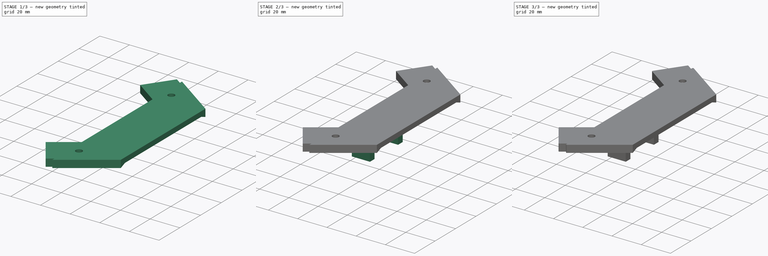
[diagram: build sequence overview — one tinted view per stage of 3, left to right]
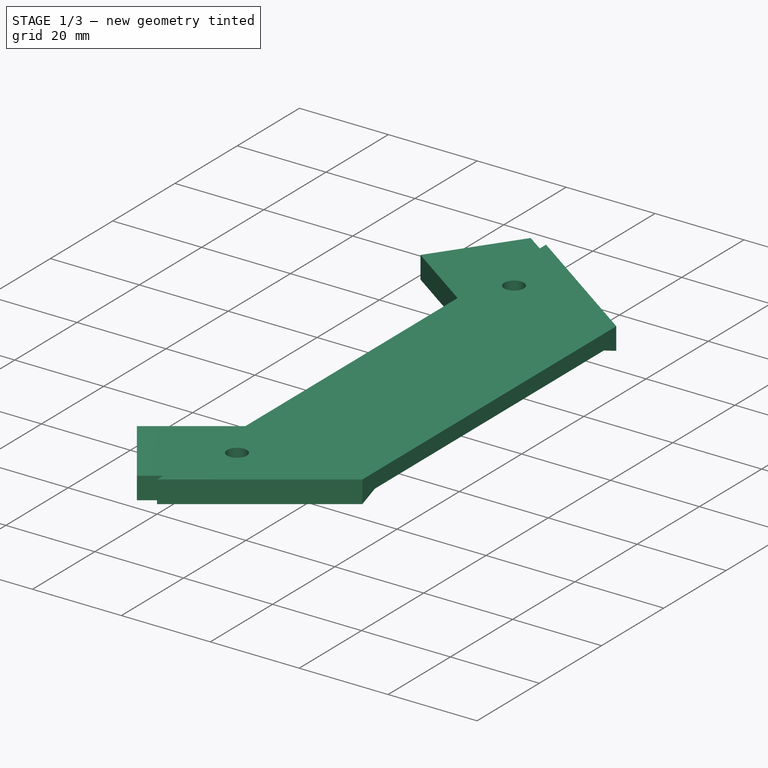
[diagram: stage 1 of 3 — iso view after this stage's code; geometry added in this stage tinted green]
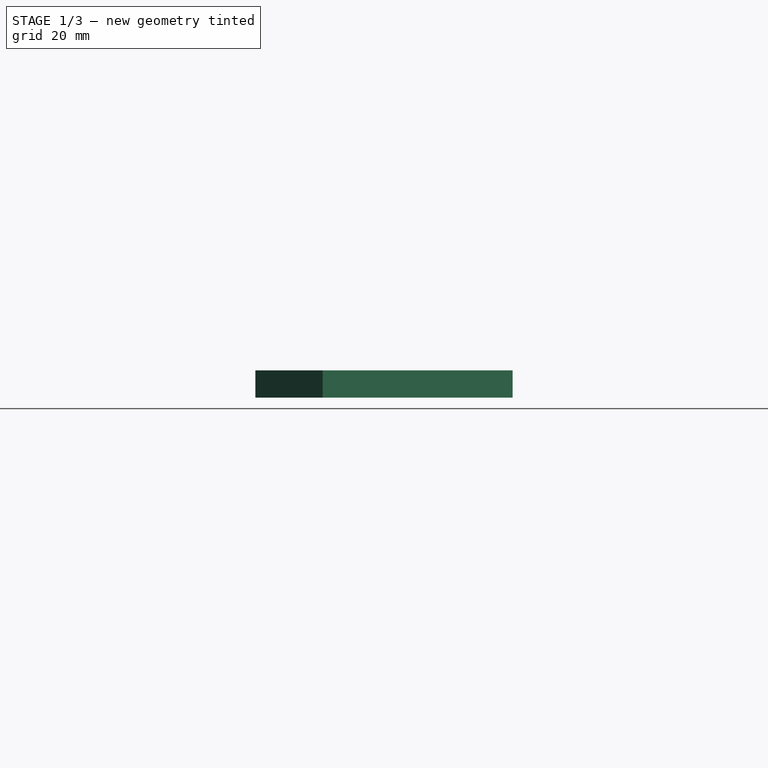
[diagram: stage 1 of 3 — front view after this stage's code; geometry added in this stage tinted green]
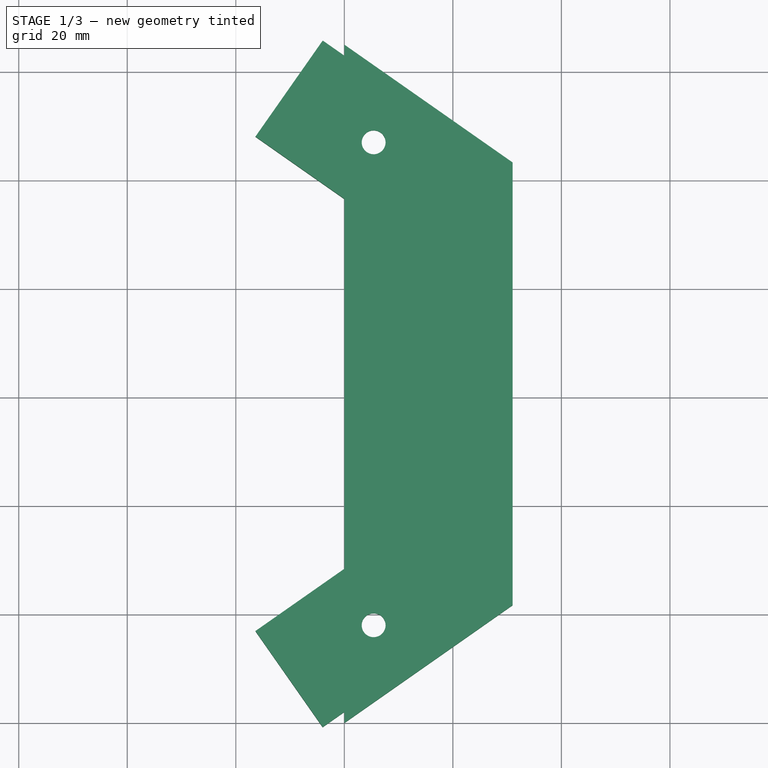
[diagram: stage 1 of 3 — top view after this stage's code; geometry added in this stage tinted green]
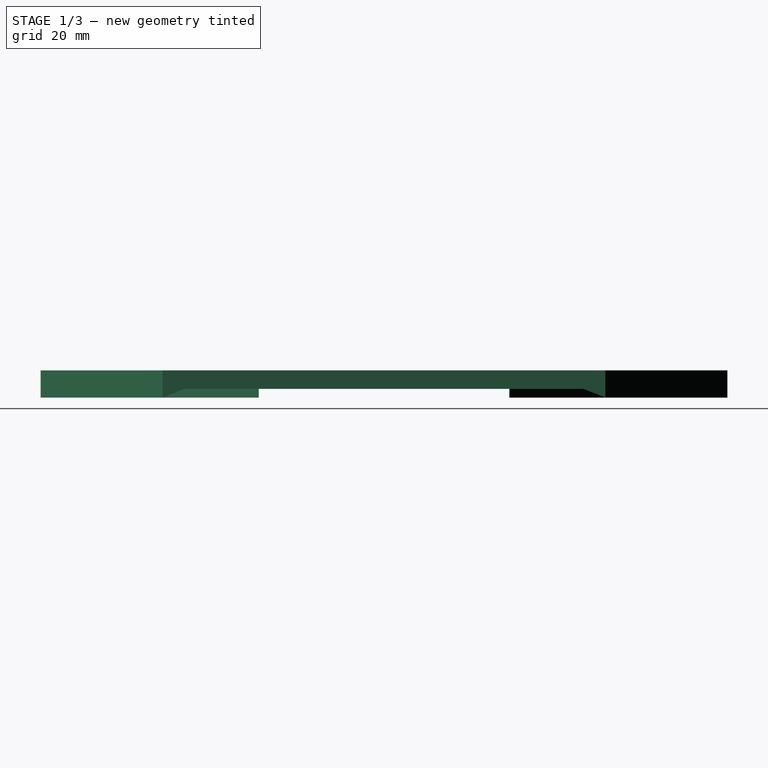
[diagram: stage 1 of 3 — right view after this stage's code; geometry added in this stage tinted green]
FCSTD DOCUMENT  (FreeCAD 1.0R39319 (Git))
Label: front sensor array
License: All rights reserved
LicenseURL: https://en.wikipedia.org/wiki/All_rights_reserved
objects: Sketcher::SketchObject×7, PartDesign::Pocket×5, PartDesign::Pad×2, PartDesign::Fillet×1, PartDesign::Body×1
note: 39 computed .brp shape members not serialized (recipe doc carries the construction recipe); baked Part::Feature solids carry a one-line shape summary decoded from their .brp

FEATURE [Sketcher::SketchObject] Sketch  label="base"
  ArcFitTolerance = 1e-06
  AttachmentSupport = -> [XY_Plane]
  FullyConstrained = true
  MakeInternals = false
  MapMode = 5
  sketch-geometry (12):
    g0: LineSegment StartX=0 StartY=0 StartZ=0 EndX=0 EndY=2.03 EndZ=0
    g1: LineSegment StartX=0 StartY=2.03 StartZ=0 EndX=-3.99319 EndY=-0.766064 EndZ=0
    g2: LineSegment StartX=-3.99319 StartY=-0.766064 StartZ=0 EndX=-16.383 EndY=16.9285 EndZ=0
    g3: LineSegment StartX=-16.383 StartY=16.9285 StartZ=0 EndX=0 EndY=28.4 EndZ=0
    g4: LineSegment StartX=0 StartY=28.4 StartZ=0 EndX=0 EndY=96.58 EndZ=0
    g5: LineSegment StartX=0 StartY=96.58 StartZ=0 EndX=-16.383 EndY=108.052 EndZ=0
    g6: LineSegment StartX=-16.383 StartY=108.052 StartZ=0 EndX=-3.9838 EndY=125.759 EndZ=0
    g7: LineSegment StartX=-3.9838 StartY=125.759 StartZ=0 EndX=4e-16 EndY=122.97 EndZ=0
    g8: LineSegment StartX=4e-16 StartY=122.97 StartZ=0 EndX=0 EndY=125 EndZ=0
    g9: LineSegment StartX=0 StartY=125 StartZ=0 EndX=31 EndY=103.294 EndZ=0
    g10: LineSegment StartX=31 StartY=103.294 StartZ=0 EndX=31 EndY=21.7064 EndZ=0
    g11: LineSegment StartX=31 StartY=21.7064 StartZ=0 EndX=0 EndY=0 EndZ=0
  constraints (35):
    c: Coincident(g-1,g0)
    c: PointOnObject(g0,g-2)
    c: Coincident(g0,g1)
    c: Coincident(g1,g2)
    c: Coincident(g2,g3)
    c: PointOnObject(g3,g-2)
    c: Coincident(g3,g4)
    c: PointOnObject(g4,g-2)
    c: Coincident(g4,g5)
    c: Coincident(g5,g6)
    c: Coincident(g6,g7)
    c: PointOnObject(g7,g-2)
    c: Coincident(g7,g8)
    c: PointOnObject(g8,g-2)
    c: Coincident(g8,g9)
    c: Coincident(g9,g10)
    c: Vertical(g10)
    c: Coincident(g10,g11)
    c: Coincident(g11,g0)
    c: Angle(g8,g9) = 0.959931
    c: Angle(g11,g0) = 0.959931
    c: Distance(g10,g4) = 31
    c: DistanceY(g0,g8) = 125
    c: Distance(g8,g8) = 2.03
    c: Equal(g8,g0)
    c: DistanceY(g4,g4) = 68.18
    c: Distance(g7,g4) = 26.39
    c: Angle(g5,g6) = 1.5708
    c: Angle(g2,g3) = 1.5708
    c: Angle(g6,g7) = 1.5708
    c: Angle(g1,g2) = 1.5708
    c: Angle(g8,g7) = 0.959931
    c: Angle(g1,g0) = 0.959931
    c: Distance(g5,g5) = 20
    c: Equal(g3,g5)
FEATURE [PartDesign::Pad] Pad  label="Pad-base"
  Direction = (0,0,1)
  Length = 5
  Length2 = 10
  Profile = -> Sketch
  ReferenceAxis = -> Sketch [N_Axis]
  Refine = true
  Suppressed = false
  Type = 0
FEATURE [Sketcher::SketchObject] Sketch001  label="holes"
  ArcFitTolerance = 1e-06
  AttachmentSupport = -> [Pad]
  ExternalGeometry = -> [Pad]
  FullyConstrained = true
  MakeInternals = false
  MapMode = 5
  Placement = pos=(0,0,5) rot=(0,0,1;0rad)
  sketch-geometry (6):
    g0: LineSegment [constr] StartX=0 StartY=125 StartZ=0 EndX=0 EndY=0 EndZ=0
    g1: LineSegment [constr] StartX=0 StartY=0 StartZ=0 EndX=3.2 EndY=0 EndZ=0
    g2: LineSegment [constr] StartX=3.2 StartY=0 StartZ=0 EndX=3.2 EndY=125 EndZ=0
    g3: LineSegment [constr] StartX=3.2 StartY=125 StartZ=0 EndX=0 EndY=125 EndZ=0
    g4: Circle CenterX=5.4 CenterY=107 CenterZ=0 NormalX=0 NormalY=0 NormalZ=1 AngleXU=0 Radius=2.2
    g5: Circle CenterX=5.4 CenterY=18 CenterZ=0 NormalX=0 NormalY=0 NormalZ=1 AngleXU=0 Radius=2.2
  constraints (17):
    c: Coincident(g0,g1)
    c: Coincident(g1,g2)
    c: Coincident(g2,g3)
    c: Coincident(g3,g0)
    c: Vertical(g0)
    c: Vertical(g2)
    c: Horizontal(g1)
    c: Horizontal(g3)
    c: Coincident(g0,g-3)
    c: PointOnObject(g1,g-1)
    c: Distance(g3,g3) = 3.2
    c: Diameter(g4) = 4.4
    c: Equal(g4,g5)
    c: DistanceY(g5,g4) = 89
    c: Distance(g5,g-1) = 18
    c: Tangent(g4,g2)
    c: Tangent(g5,g2)
FEATURE [PartDesign::Pocket] Pocket  label="Pocket-holes"
  BaseFeature = -> Pad
  Direction = (0,0,-1)
  Length = 0
  Length2 = 5
  Profile = -> Sketch001
  ReferenceAxis = -> Sketch001 [N_Axis]
  Refine = true
  Suppressed = false
  Type = 1
FEATURE [Sketcher::SketchObject] Sketch002  label="ir-sensor-outer"
  ArcFitTolerance = 1e-06
  AttachmentSupport = -> [Pocket]
  ExternalGeometry = -> [Pocket]
  FullyConstrained = true
  MakeInternals = false
  MapMode = 5
  Placement = pos=(0,0,0) rot=(1,0,0;3.14159rad)
  sketch-geometry (8):
    g0: LineSegment StartX=-12.164 StartY=-15.8951 StartZ=0 EndX=-2.58523 EndY=-2.21521 EndZ=0
    g1: LineSegment StartX=-2.58523 StartY=-2.21521 StartZ=0 EndX=31 EndY=-25.7318 EndZ=0
    g2: LineSegment StartX=31 StartY=-25.7318 StartZ=0 EndX=21.4213 EndY=-39.4117 EndZ=0
    g3: LineSegment StartX=21.4213 StartY=-39.4117 StartZ=0 EndX=-12.164 EndY=-15.8951 EndZ=0
    g4: LineSegment StartX=-2.58523 StartY=-122.785 StartZ=0 EndX=-12.164 EndY=-109.105 EndZ=0
    g5: LineSegment StartX=-12.164 StartY=-109.105 StartZ=0 EndX=21.4213 EndY=-85.5883 EndZ=0
    g6: LineSegment StartX=21.4213 StartY=-85.5883 StartZ=0 EndX=31 EndY=-99.2682 EndZ=0
    g7: LineSegment StartX=31 StartY=-99.2682 StartZ=0 EndX=-2.58523 EndY=-122.785 EndZ=0
  constraints (24):
    c: Coincident(g0,g1)
    c: Coincident(g1,g2)
    c: Coincident(g2,g3)
    c: Coincident(g3,g0)
    c: Parallel(g3,g-4)
    c: Parallel(g0,g-3)
    c: Angle(g2,g3) = 1.5708
    c: Angle(g0,g1) = 1.5708
    c: PointOnObject(g1,g-11)
    c: Distance(g-5,g3) = 8.35
    c: Distance(g-5,g1) = 8.35
    c: Distance(g3,g3) = 41
    c: Coincident(g4,g5)
    c: Coincident(g5,g6)
    c: PointOnObject(g6,g-11)
    c: Coincident(g6,g7)
    c: Coincident(g7,g4)
    c: Angle(g7,g4) = 1.5708
    c: Angle(g5,g6) = 1.5708
    c: Distance(g5,g5) = 41
    c: Distance(g-9,g5) = 8.35
    c: Parallel(g5,g-6)
    c: Parallel(g7,g-8)
    c: Distance(g-9,g7) = 8.35
FEATURE [PartDesign::Pocket] Pocket001  label="Pocket-ir-sensor-outer"
  BaseFeature = -> Pocket
  Direction = (0,0,1)
  Length = 1.6
  Length2 = 5
  Profile = -> Sketch002
  ReferenceAxis = -> Sketch002 [N_Axis]
  Refine = true
  Suppressed = false
  Type = 0
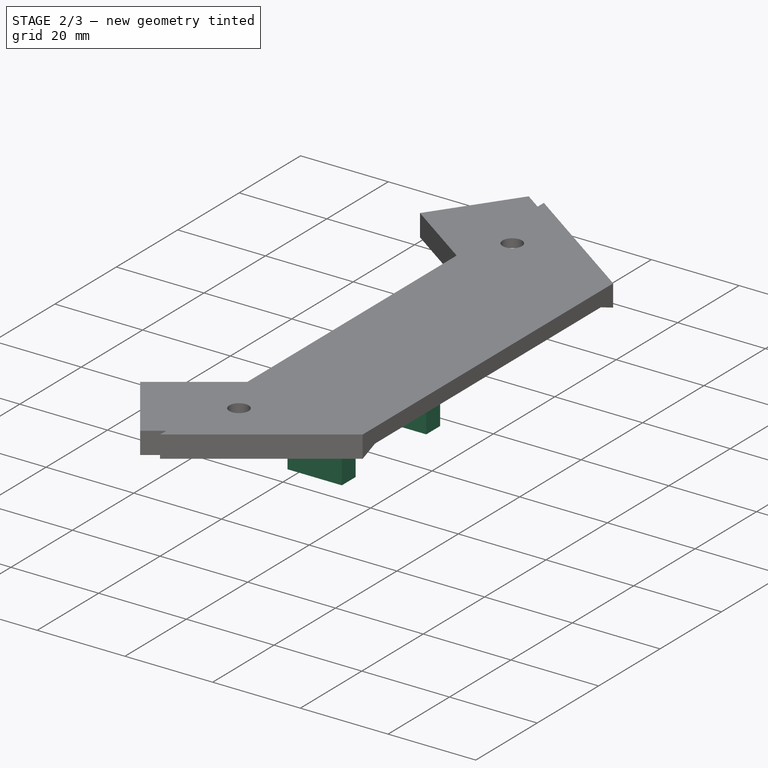
[diagram: stage 2 of 3 — iso view after this stage's code; geometry added in this stage tinted green]
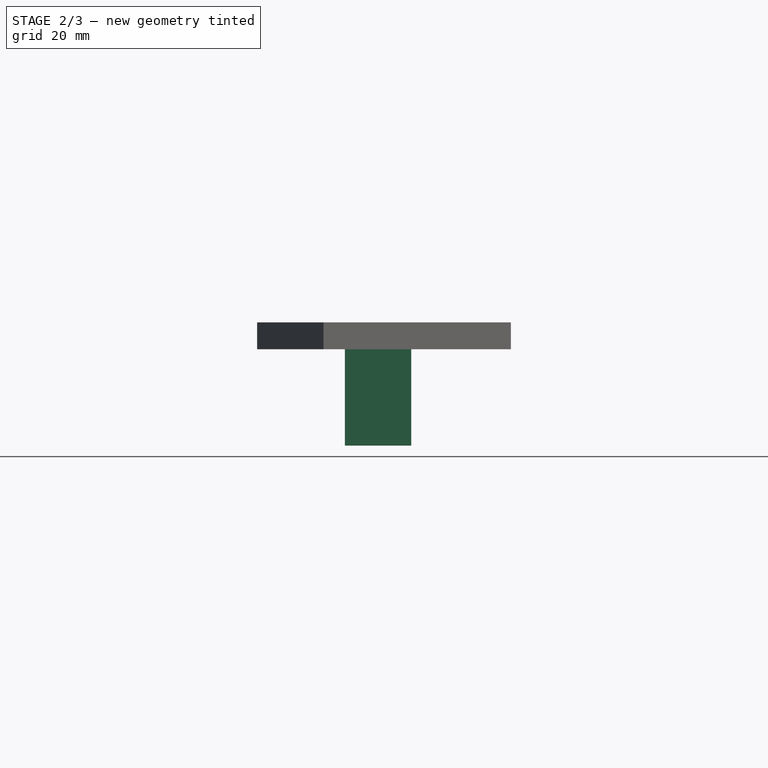
[diagram: stage 2 of 3 — front view after this stage's code; geometry added in this stage tinted green]
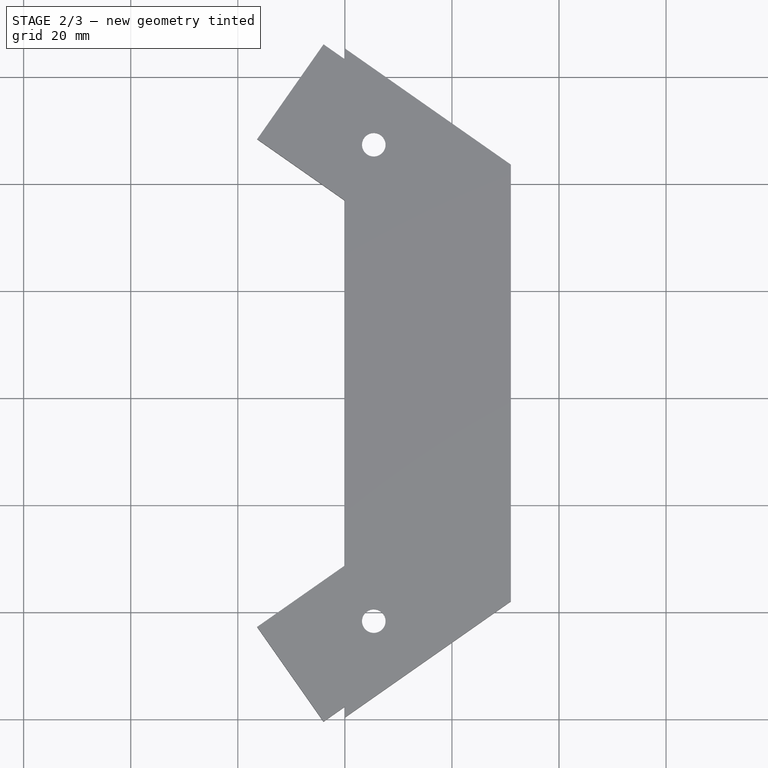
[diagram: stage 2 of 3 — top view after this stage's code; geometry added in this stage tinted green]
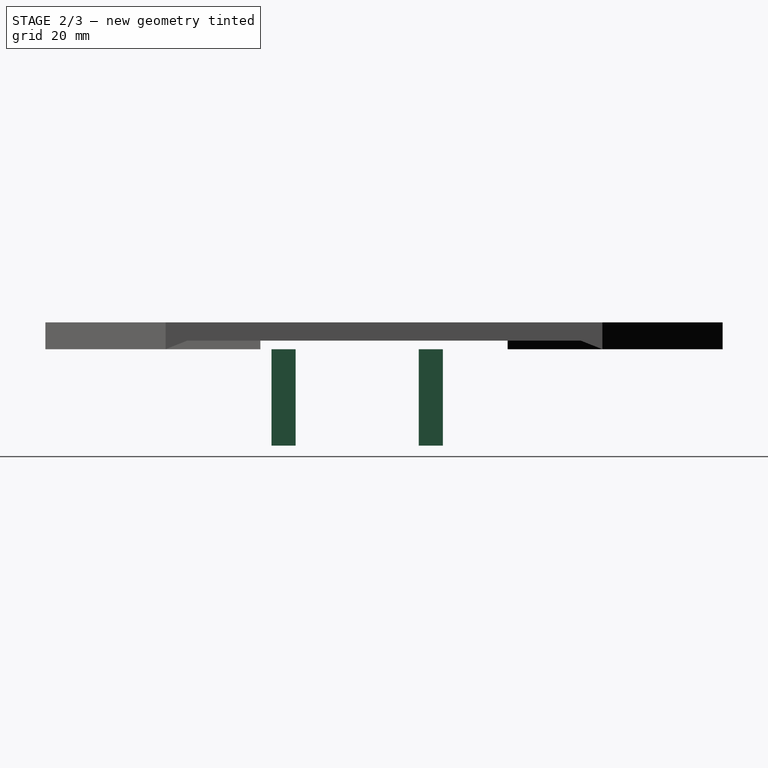
[diagram: stage 2 of 3 — right view after this stage's code; geometry added in this stage tinted green]
FEATURE [Sketcher::SketchObject] Sketch003  label="ir-sensor-inner"
  ArcFitTolerance = 1e-06
  AttachmentSupport = -> [Pocket001]
  ExternalGeometry = -> [Pocket001]
  FullyConstrained = true
  MakeInternals = false
  MapMode = 5
  Placement = pos=(0,0,1.6) rot=(1,0,0;3.14159rad)
  sketch-geometry (8):
    g0: LineSegment StartX=-2.33966 StartY=-121.392 StartZ=0 EndX=-10.7712 EndY=-109.351 EndZ=0
    g1: LineSegment StartX=-10.7712 StartY=-109.351 StartZ=0 EndX=21.1757 EndY=-86.981 EndZ=0
    g2: LineSegment StartX=21.1757 StartY=-86.981 StartZ=0 EndX=29.6073 EndY=-99.0226 EndZ=0
    g3: LineSegment StartX=29.6073 StartY=-99.0226 StartZ=0 EndX=-2.33966 EndY=-121.392 EndZ=0
    g4: LineSegment StartX=-10.7712 StartY=-15.6495 StartZ=0 EndX=21.1757 EndY=-38.019 EndZ=0
    g5: LineSegment StartX=21.1757 StartY=-38.019 StartZ=0 EndX=29.6073 EndY=-25.9774 EndZ=0
    g6: LineSegment StartX=29.6073 StartY=-25.9774 StartZ=0 EndX=-2.33966 EndY=-3.60794 EndZ=0
    g7: LineSegment StartX=-2.33966 StartY=-3.60794 StartZ=0 EndX=-10.7712 EndY=-15.6495 EndZ=0
  constraints (24):
    c: Coincident(g0,g1)
    c: Coincident(g1,g2)
    c: Coincident(g2,g3)
    c: Coincident(g3,g0)
    c: Coincident(g4,g5)
    c: Coincident(g5,g6)
    c: Coincident(g6,g7)
    c: Coincident(g7,g4)
    c: Angle(g0,g1) = 1.5708
    c: Angle(g3,g0) = 1.5708
    c: Angle(g2,g3) = 1.5708
    c: Parallel(g3,g-6)
    c: Distance(g-6,g3) = 1
    c: Distance(g-5,g1) = 1
    c: Distance(g1,g-7) = 1
    c: Distance(g0,g-8) = 1
    c: Parallel(g4,g-4)
    c: Parallel(g5,g-10)
    c: Parallel(g6,g-3)
    c: Parallel(g7,g-9)
    c: Distance(g-9,g7) = 1
    c: Distance(g-4,g4) = 1
    c: Distance(g-10,g5) = 1
    c: Distance(g-3,g6) = 1
FEATURE [PartDesign::Pocket] Pocket002  label="Pocket-ir-sensor-inner"
  BaseFeature = -> Pocket001
  Direction = (0,0,1)
  Length = 1.4
  Length2 = 5
  Profile = -> Sketch003
  ReferenceAxis = -> Sketch003 [N_Axis]
  Refine = true
  Suppressed = false
  Type = 0
FEATURE [Sketcher::SketchObject] Sketch004  label="servo mount-base"
  ArcFitTolerance = 1e-06
  AttachmentSupport = -> [Pocket002]
  ExternalGeometry = -> [Sketch]
  FullyConstrained = true
  MakeInternals = false
  MapMode = 5
  Placement = pos=(0,0,0) rot=(1,0,0;3.14159rad)
  sketch-geometry (12):
    g0: LineSegment StartX=0 StartY=-41.49 StartZ=0 EndX=0 EndY=-45.99 EndZ=0
    g1: LineSegment StartX=0 StartY=-45.99 StartZ=0 EndX=12.4 EndY=-45.99 EndZ=0
    g2: LineSegment StartX=12.4 StartY=-45.99 StartZ=0 EndX=12.4 EndY=-41.49 EndZ=0
    g3: LineSegment StartX=12.4 StartY=-41.49 StartZ=0 EndX=0 EndY=-41.49 EndZ=0
    g4: LineSegment StartX=0 StartY=-68.99 StartZ=0 EndX=0 EndY=-73.49 EndZ=0
    g5: LineSegment StartX=0 StartY=-73.49 StartZ=0 EndX=12.4 EndY=-73.49 EndZ=0
    g6: LineSegment StartX=12.4 StartY=-73.49 StartZ=0 EndX=12.4 EndY=-68.99 EndZ=0
    g7: LineSegment StartX=12.4 StartY=-68.99 StartZ=0 EndX=0 EndY=-68.99 EndZ=0
    g8: LineSegment [constr] StartX=12.4 StartY=-68.99 StartZ=0 EndX=12.4 EndY=-62.49 EndZ=0
    g9: LineSegment [constr] StartX=12.4 StartY=-62.49 StartZ=0 EndX=0 EndY=-62.49 EndZ=0
    g10: LineSegment [constr] StartX=0 StartY=-62.49 StartZ=0 EndX=0 EndY=-68.99 EndZ=0
    g11: LineSegment [constr] StartX=0 StartY=-68.99 StartZ=0 EndX=12.4 EndY=-68.99 EndZ=0
  constraints (35):
    c: Coincident(g0,g1)
    c: Coincident(g1,g2)
    c: Coincident(g2,g3)
    c: Coincident(g3,g0)
    c: Vertical(g0)
    c: Vertical(g2)
    c: Horizontal(g1)
    c: Horizontal(g3)
    c: PointOnObject(g0,g-3)
    c: Coincident(g4,g5)
    c: Coincident(g5,g6)
    c: Coincident(g6,g7)
    c: Coincident(g7,g4)
    c: Vertical(g4)
    c: Vertical(g6)
    c: Horizontal(g5)
    c: Horizontal(g7)
    c: PointOnObject(g4,g-3)
    c: Distance(g2,g2) = 4.5
    c: DistanceX(g3,g3) = 12.4
    c: Equal(g2,g6)
    c: Equal(g3,g7)
    c: Distance(g7,g1) = 23
    c: Coincident(g8,g9)
    c: Coincident(g9,g10)
    c: Coincident(g10,g11)
    c: Coincident(g11,g8)
    c: Vertical(g8)
    c: Vertical(g10)
    c: Horizontal(g9)
    c: Horizontal(g11)
    c: Coincident(g8,g6)
    c: PointOnObject(g9,g-3)
    c: DistanceY(g8,g8) = 6.5
    c: DistanceY(g9,g-3) = 34.09
FEATURE [PartDesign::Pad] Pad001  label="Pad-servo-mount-base"
  BaseFeature = -> Pocket002
  Direction = (0,0,-1)
  Length = 18
  Length2 = 10
  Profile = -> Sketch004
  ReferenceAxis = -> Sketch004 [N_Axis]
  Refine = true
  Suppressed = false
  Type = 0
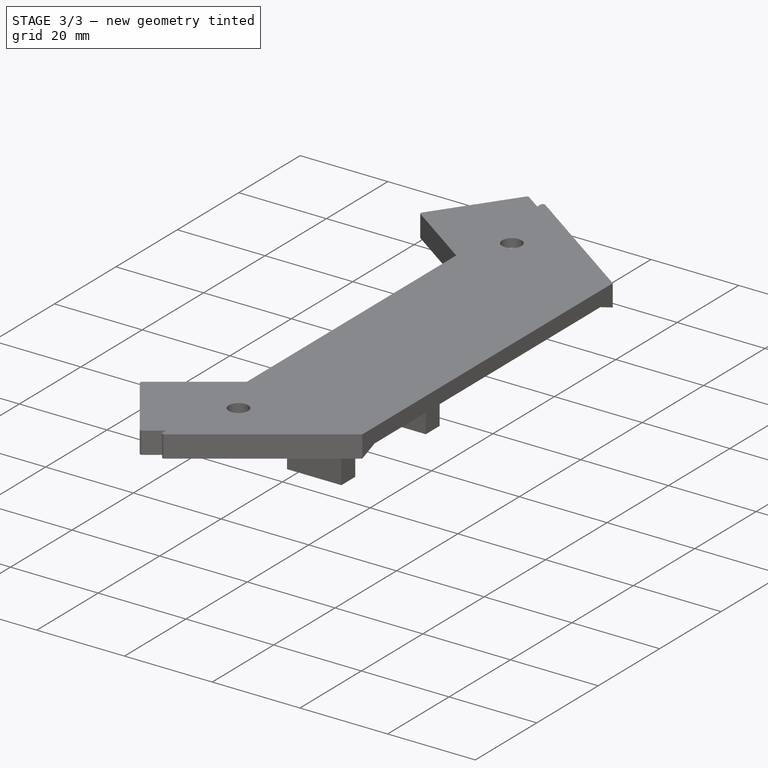
[diagram: stage 3 of 3 — iso view after this stage's code; geometry added in this stage tinted green]
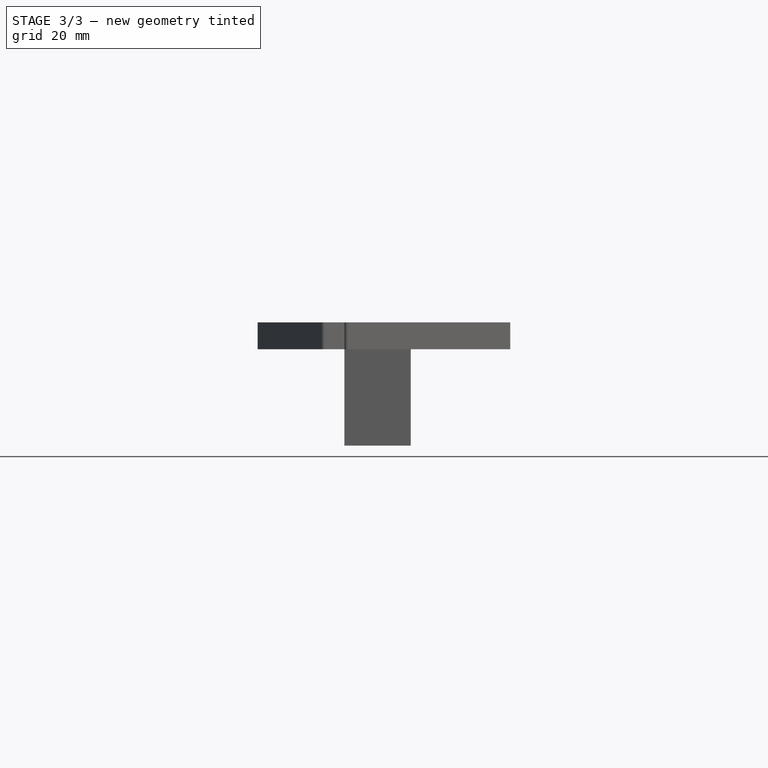
[diagram: stage 3 of 3 — front view after this stage's code; geometry added in this stage tinted green]
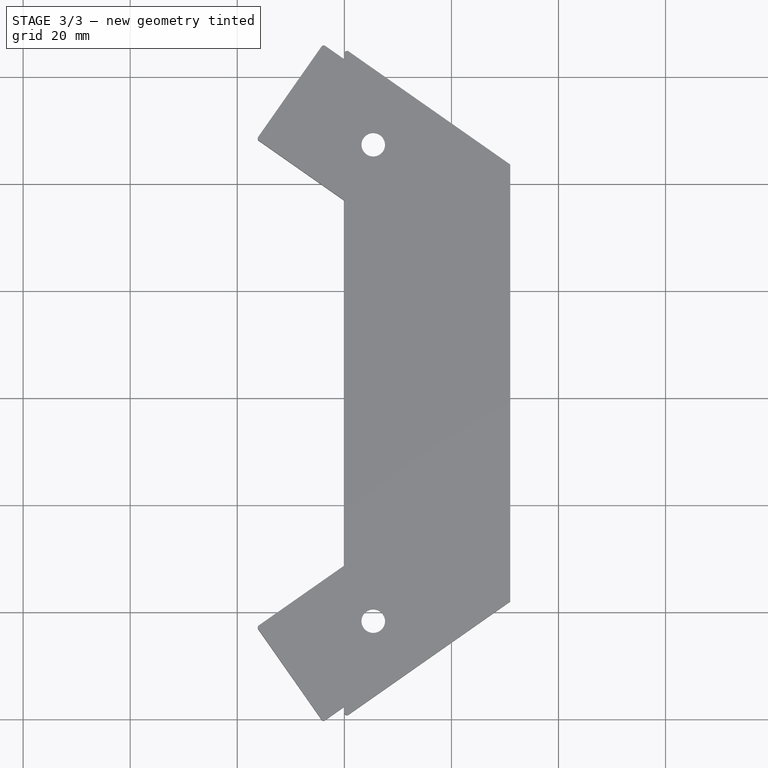
[diagram: stage 3 of 3 — top view after this stage's code; geometry added in this stage tinted green]
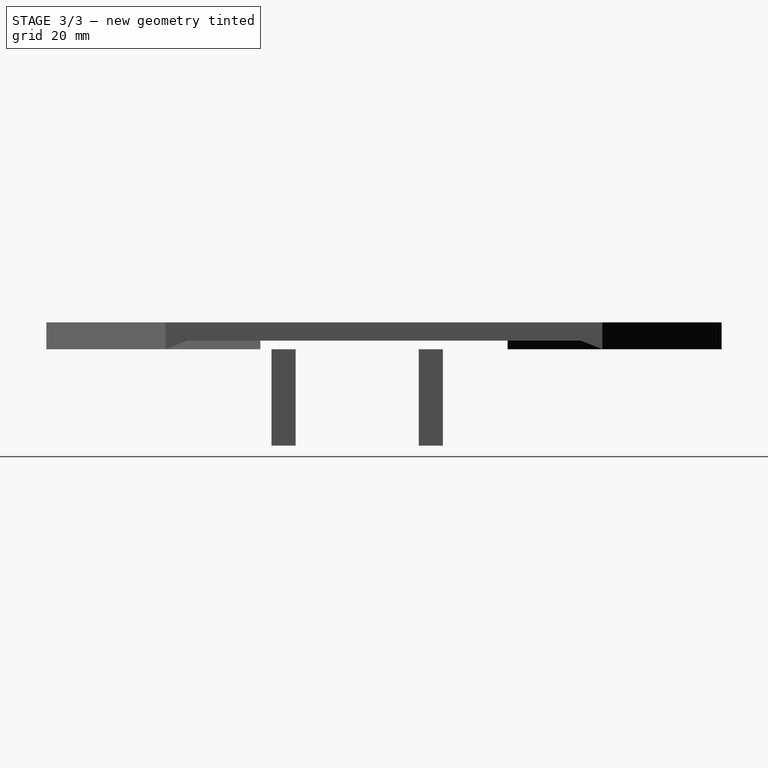
[diagram: stage 3 of 3 — right view after this stage's code; geometry added in this stage tinted green]
FEATURE [Sketcher::SketchObject] Sketch005  label="servo-cable"
  ArcFitTolerance = 1e-06
  AttachmentSupport = -> [Pad001]
  ExternalGeometry = -> [Pad001]
  FullyConstrained = true
  MakeInternals = false
  MapMode = 5
  Placement = pos=(0,73.49,0) rot=(0,0.707107,0.707107;3.14159rad)
  sketch-geometry (9):
    g0: LineSegment StartX=-10.3 StartY=0 StartZ=0 EndX=-10.3 EndY=-4.5 EndZ=0
    g1: LineSegment StartX=-10.3 StartY=-4.5 StartZ=0 EndX=-2.1 EndY=-4.5 EndZ=0
    g2: LineSegment StartX=-2.1 StartY=-4.5 StartZ=0 EndX=-2.1 EndY=0 EndZ=0
    g3: LineSegment StartX=-2.1 StartY=0 StartZ=0 EndX=-10.3 EndY=0 EndZ=0
    g4: LineSegment [constr] StartX=-12.4 StartY=0 StartZ=0 EndX=1.8e-15 EndY=-18 EndZ=0
    g5: LineSegment [constr] StartX=-12.4 StartY=-18 StartZ=0 EndX=1.8e-15 EndY=0 EndZ=0
    g6: LineSegment [constr] StartX=-10.3 StartY=0 StartZ=0 EndX=-2.1 EndY=-4.5 EndZ=0
    g7: LineSegment [constr] StartX=-10.3 StartY=-4.5 StartZ=0 EndX=-2.1 EndY=0 EndZ=0
    g8: LineSegment [constr] StartX=-6.2 StartY=-2.25 StartZ=0 EndX=-6.2 EndY=-9 EndZ=0
  constraints (22):
    c: Coincident(g0,g1)
    c: Coincident(g1,g2)
    c: Coincident(g2,g3)
    c: Coincident(g3,g0)
    c: Vertical(g0)
    c: Vertical(g2)
    c: Horizontal(g1)
    c: Horizontal(g3)
    c: Distance(g0,g2) = 8.2
    c: Distance(g1,g3) = 4.5
    c: PointOnObject(g0,g-5)
    c: Coincident(g4,g-5)
    c: Coincident(g4,g-6)
    c: Coincident(g5,g-6)
    c: Coincident(g5,g-1)
    c: Coincident(g6,g0)
    c: Coincident(g6,g1)
    c: Coincident(g7,g0)
    c: Coincident(g7,g2)
    c: Symmetric(g7,g7,g8)
    c: Symmetric(g4,g4,g8)
    c: Vertical(g8)
FEATURE [PartDesign::Pocket] Pocket003  label="Pocket-servo-cable"
  BaseFeature = -> Pad001
  Direction = (0,-1,2e-16)
  Length = 5
  Length2 = 5
  Profile = -> Sketch005
  ReferenceAxis = -> Sketch005 [N_Axis]
  Refine = true
  Suppressed = false
  Type = 2
FEATURE [Sketcher::SketchObject] Sketch006
  ArcFitTolerance = 1e-06
  AttachmentSupport = -> [Pocket003]
  ExternalGeometry = -> [Pocket003]
  FullyConstrained = true
  MakeInternals = false
  MapMode = 5
  Placement = pos=(0,0,-18) rot=(1,0,0;3.14159rad)
  sketch-geometry (6):
    g0: LineSegment [constr] StartX=0 StartY=-41.49 StartZ=0 EndX=12.4 EndY=-45.99 EndZ=0
    g1: LineSegment [constr] StartX=12.4 StartY=-41.49 StartZ=0 EndX=0 EndY=-45.99 EndZ=0
    g2: LineSegment [constr] StartX=0 StartY=-68.99 StartZ=0 EndX=12.4 EndY=-73.49 EndZ=0
    g3: LineSegment [constr] StartX=12.4 StartY=-68.99 StartZ=0 EndX=0 EndY=-73.49 EndZ=0
    g4: Circle CenterX=6.2 CenterY=-43.74 CenterZ=0 NormalX=0 NormalY=0 NormalZ=1 AngleXU=0 Radius=0.85
    g5: Circle CenterX=6.2 CenterY=-71.24 CenterZ=0 NormalX=0 NormalY=0 NormalZ=1 AngleXU=0 Radius=0.85
  constraints (12):
    c: Coincident(g0,g-3)
    c: Coincident(g0,g-4)
    c: Coincident(g1,g-3)
    c: Coincident(g1,g-4)
    c: Coincident(g2,g-5)
    c: Coincident(g2,g-6)
    c: Coincident(g3,g-5)
    c: Coincident(g3,g-6)
    c: Diameter(g4) = 1.7
    c: Symmetric(g0,g0,g4)
    c: Symmetric(g3,g3,g5)
    c: Equal(g4,g5)
FEATURE [PartDesign::Pocket] Pocket004
  BaseFeature = -> Pocket003
  Direction = (0,0,1)
  Length = 10
  Length2 = 5
  Profile = -> Sketch006
  ReferenceAxis = -> Sketch006 [N_Axis]
  Refine = true
  Suppressed = false
  Type = 0
FEATURE [PartDesign::Fillet] Fillet
  Base = -> Pocket004 [Edge1,Edge8,Edge56,Edge81,Edge82,Edge84]
  BaseFeature = -> Pocket004
  Radius = 0.5
  Refine = true
  SupportTransform = false
  Suppressed = false
  UseAllEdges = false
FEATURE [PartDesign::Body] Body
  AllowCompound = false
  Group = -> [Sketch,Pad,Sketch001,Pocket,Sketch002,Pocket001,Sketch003,Pocket002,Sketch004,Pad001,Sketch005,Pocket003,Sketch006,Pocket004,Fillet]
  Origin = -> Origin
  Tip = -> Fillet
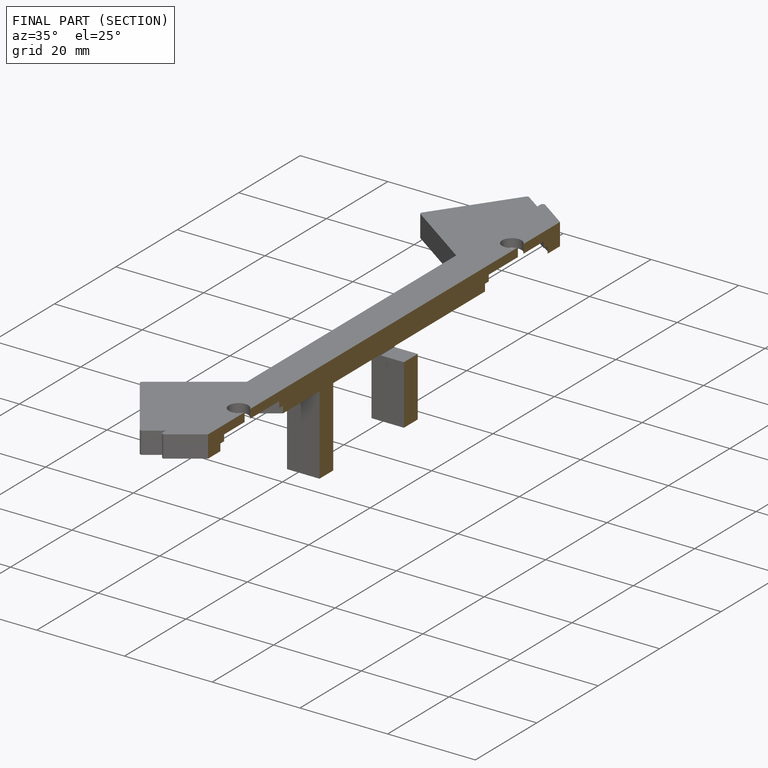
[diagram: finished part — half-section view (interior)]
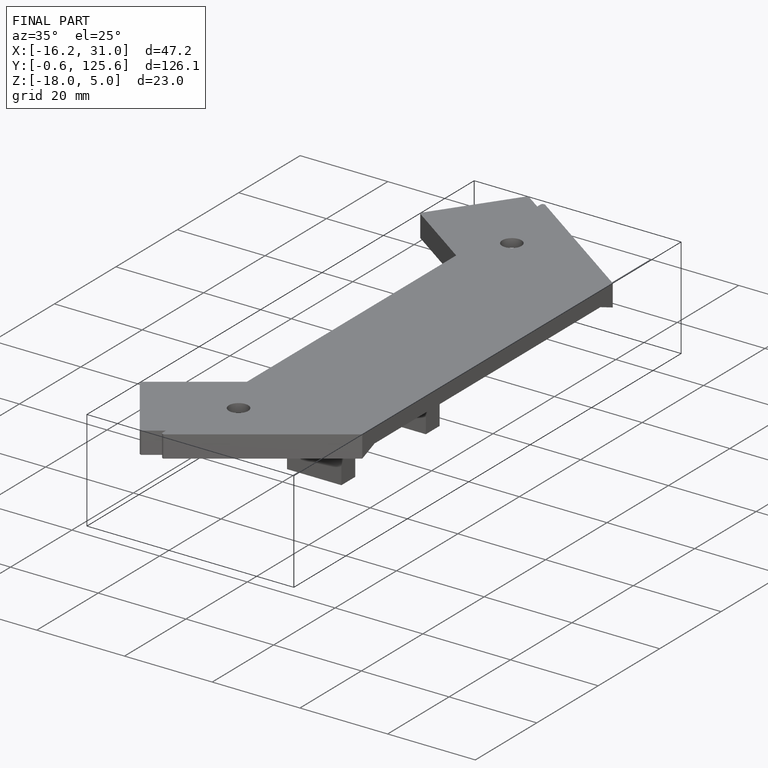
[diagram: finished part — iso view with bounding-box wireframe]
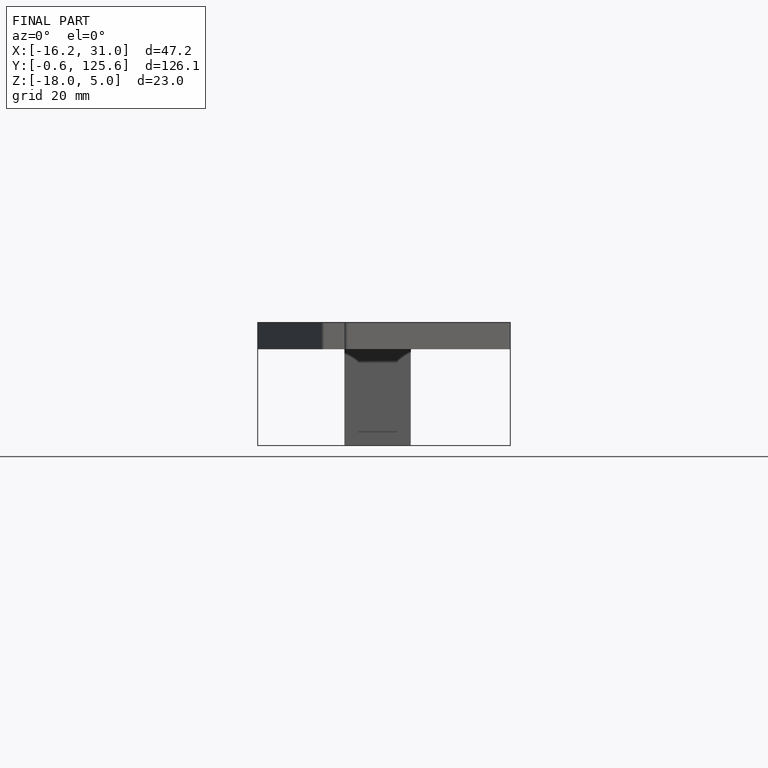
[diagram: finished part — front view with bounding-box wireframe]
